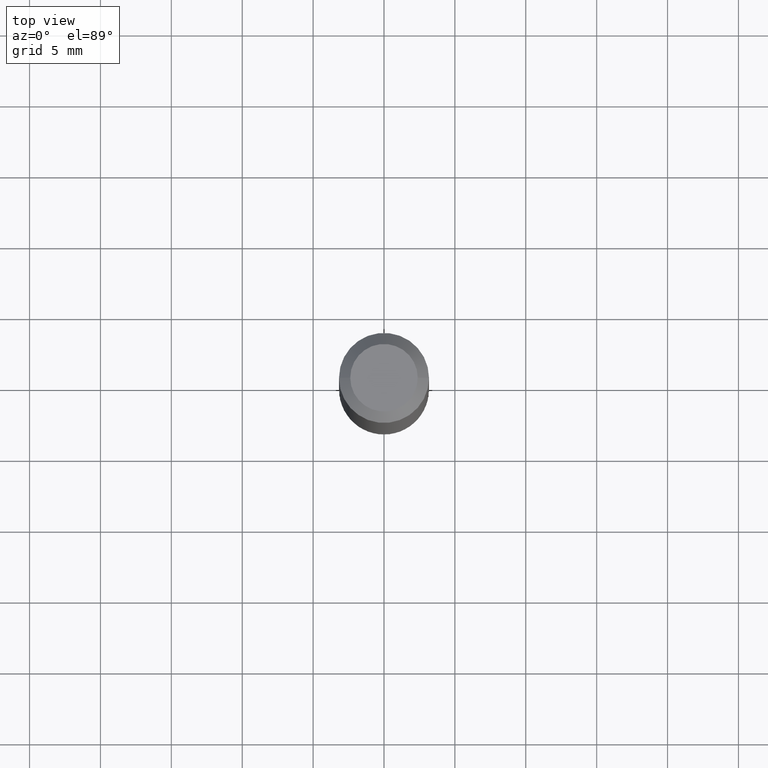
[diagram: clean part render]
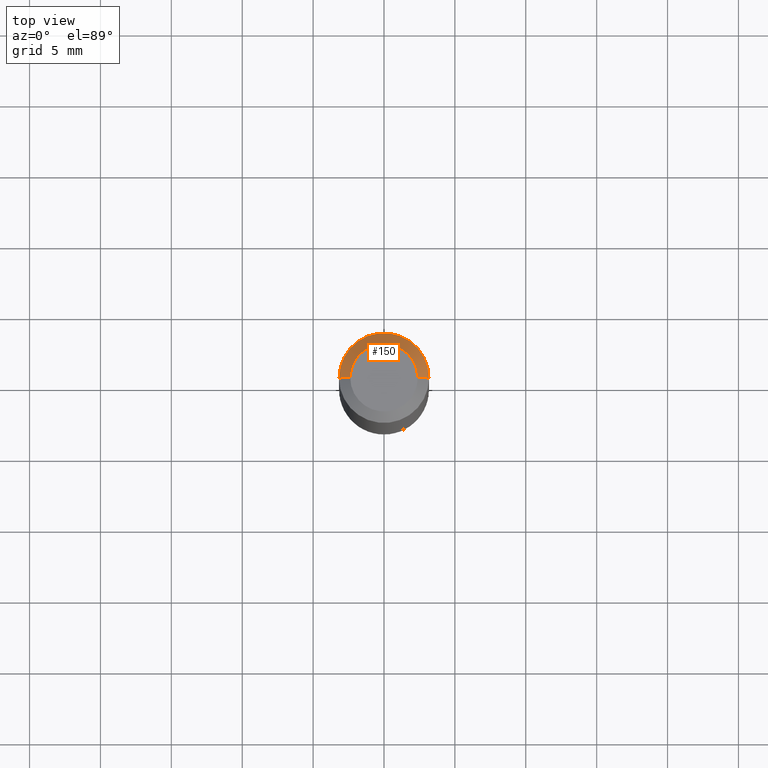
[diagram: same view with one face highlighted and labeled with its STEP entity id]
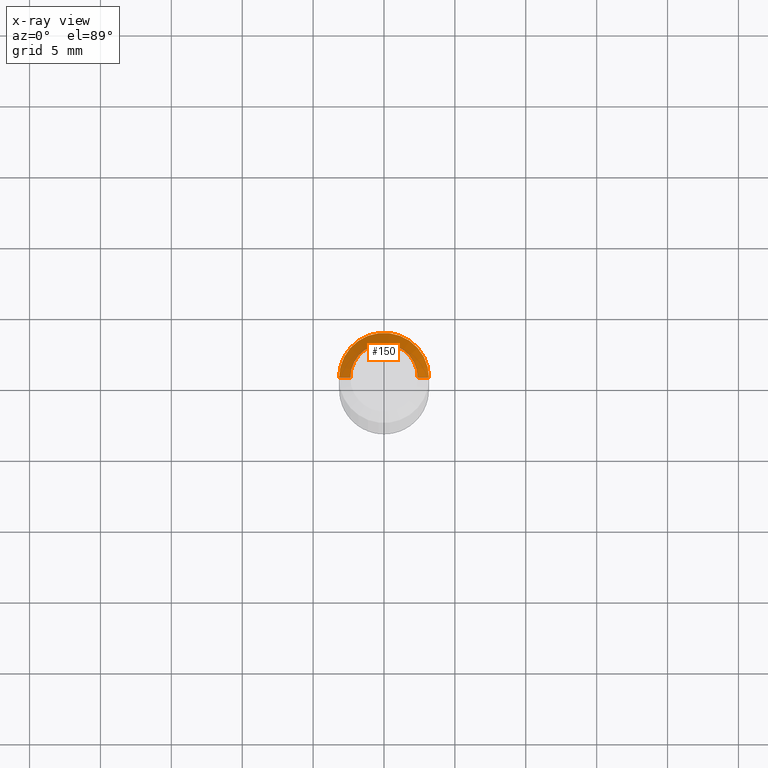
[diagram: x-ray of the same camera — body ghosted, the highlighted face saturated]
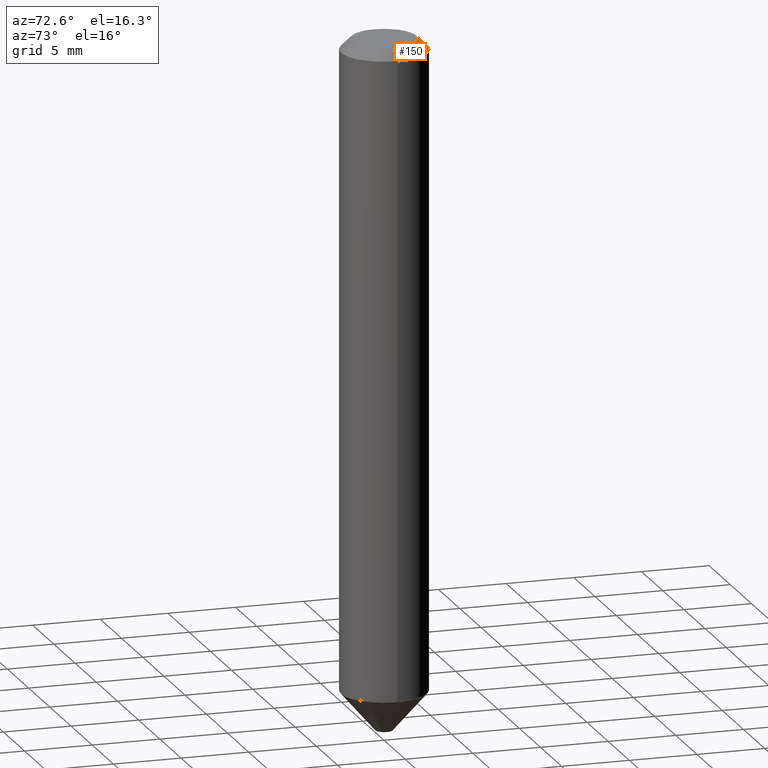
[diagram: same view with one face highlighted and labeled with its STEP entity id]
A machine part, top view. The second image highlights one B-rep face of the part: STEP entity #150.
The next image is the same camera in x-ray: the body ghosted, the highlighted face saturated — about 0% of this face is hidden behind the body in this view.
A second angle (auxiliary view) of the same face is appended — the face is thin or edge-on in the first view.
In plain terms, the highlighted conical surface has half-angle 45 deg.
Its self-contained STEP definition (entity closure, byte-faithful):
#9 = LINE ( 'NONE', #134, #316 ) ;
#25 = CARTESIAN_POINT ( 'NONE',  ( -9.358861080966640236E-47, 1.336197326842803670E-32, 3.827021247335477232E-18 ) ) ;
#33 = VERTEX_POINT ( 'NONE', #292 ) ;
#40 = CARTESIAN_POINT ( 'NONE',  ( 0.1250000000000000278, -9.666710415602907432E-16, -0.03125000000000022898 ) ) ;
#65 = CIRCLE ( 'NONE', #90, 0.1250000000000000278 ) ;
#82 = FACE_OUTER_BOUND ( 'NONE', #91, .T. ) ;
#84 = VECTOR ( 'NONE', #365, 39.37007874015748143 ) ;
#87 = VERTEX_POINT ( 'NONE', #307 ) ;
#90 = AXIS2_PLACEMENT_3D ( 'NONE', #306, #378, #179 ) ;
#91 = EDGE_LOOP ( 'NONE', ( #370, #386, #255, #100 ) ) ;
#100 = ORIENTED_EDGE ( 'NONE', *, *, #397, .F. ) ;
#126 = DIRECTION ( 'NONE',  ( -2.445468806185136597E-29, 3.491481338843145583E-15, 1.000000000000000000 ) ) ;
#134 = CARTESIAN_POINT ( 'NONE',  ( -0.1250000000000000278, 7.637615428719344354E-16, -0.03125000000000022898 ) ) ;
#141 = CARTESIAN_POINT ( 'NONE',  ( 7.642090019328607041E-31, -1.091087918388490883E-16, -0.03125000000000022898 ) ) ;
#150 = ADVANCED_FACE ( 'NONE', ( #82 ), #411, .T. ) ;
#179 = DIRECTION ( 'NONE',  ( 1.000000000000000000, -6.982962677686265922E-15, 0.000000000000000000 ) ) ;
#187 = VERTEX_POINT ( 'NONE', #207 ) ;
#206 = DIRECTION ( 'NONE',  ( -0.7071067811865452413, 2.468850131082233000E-15, -0.7071067811865497932 ) ) ;
#207 = CARTESIAN_POINT ( 'NONE',  ( -0.1250000000000000278, -2.456301073605589250E-15, -0.03125000000000022898 ) ) ;
#211 = EDGE_CURVE ( 'NONE', #33, #187, #65, .T. ) ;
#248 = AXIS2_PLACEMENT_3D ( 'NONE', #25, #126, #256 ) ;
#253 = EDGE_CURVE ( 'NONE', #87, #33, #334, .T. ) ;
#255 = ORIENTED_EDGE ( 'NONE', *, *, #211, .T. ) ;
#256 = DIRECTION ( 'NONE',  ( 1.000000000000000000, -6.982962677686266711E-15, 4.875989565238656407E-29 ) ) ;
#270 = CIRCLE ( 'NONE', #248, 0.09374999999999998612 ) ;
#280 = DIRECTION ( 'NONE',  ( 2.445468806185136597E-29, -3.491481338843145583E-15, -1.000000000000000000 ) ) ;
#291 = EDGE_CURVE ( 'NONE', #87, #304, #270, .T. ) ;
#292 = CARTESIAN_POINT ( 'NONE',  ( 0.1250000000000000278, -9.819791265496326367E-16, -0.03125000000000022898 ) ) ;
#294 = AXIS2_PLACEMENT_3D ( 'NONE', #141, #280, #407 ) ;
#304 = VERTEX_POINT ( 'NONE', #394 ) ;
#306 = CARTESIAN_POINT ( 'NONE',  ( 7.642090019328607041E-31, -1.091087918388490883E-16, -0.03125000000000022898 ) ) ;
#307 = CARTESIAN_POINT ( 'NONE',  ( 0.09374999999999998612, -8.049213644256858150E-16, 3.827021247340580176E-18 ) ) ;
#316 = VECTOR ( 'NONE', #206, 39.37007874015748143 ) ;
#334 = LINE ( 'NONE', #40, #84 ) ;
#365 = DIRECTION ( 'NONE',  ( 0.7071067811865452413, -7.319954787623248157E-15, -0.7071067811865497932 ) ) ;
#370 = ORIENTED_EDGE ( 'NONE', *, *, #291, .F. ) ;
#378 = DIRECTION ( 'NONE',  ( -2.445468806185136597E-29, 3.491481338843145583E-15, 1.000000000000000000 ) ) ;
#386 = ORIENTED_EDGE ( 'NONE', *, *, #253, .T. ) ;
#394 = CARTESIAN_POINT ( 'NONE',  ( -0.09374999999999998612, 7.092071469525108711E-16, 3.827021247330707859E-18 ) ) ;
#397 = EDGE_CURVE ( 'NONE', #304, #187, #9, .T. ) ;
#407 = DIRECTION ( 'NONE',  ( -1.000000000000000000, 6.982962677686265922E-15, 0.000000000000000000 ) ) ;
#411 = CONICAL_SURFACE ( 'NONE', #294, 0.1250000000000000278, 0.7853981633974450594 ) ;